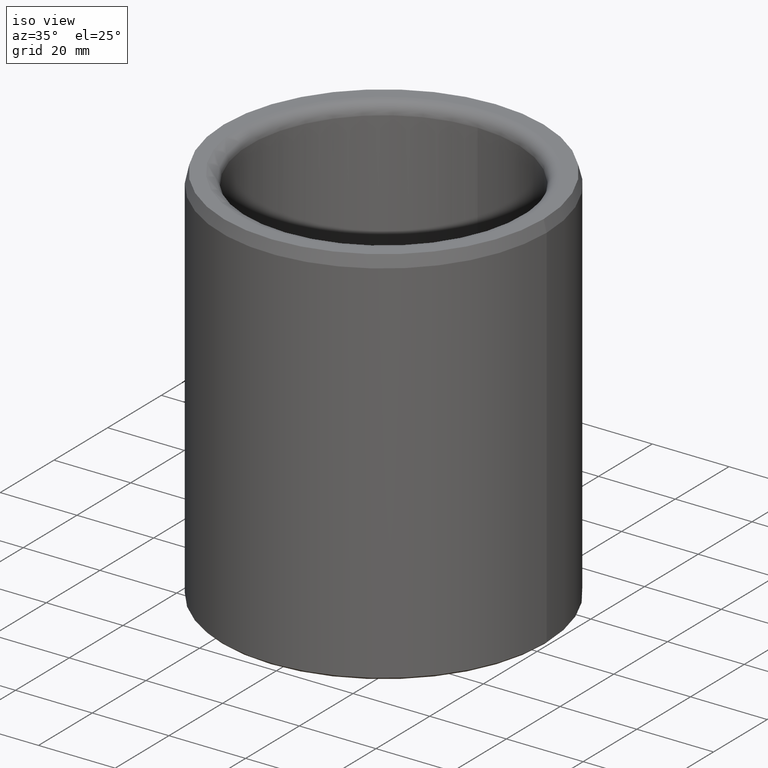
[diagram: clean part render]
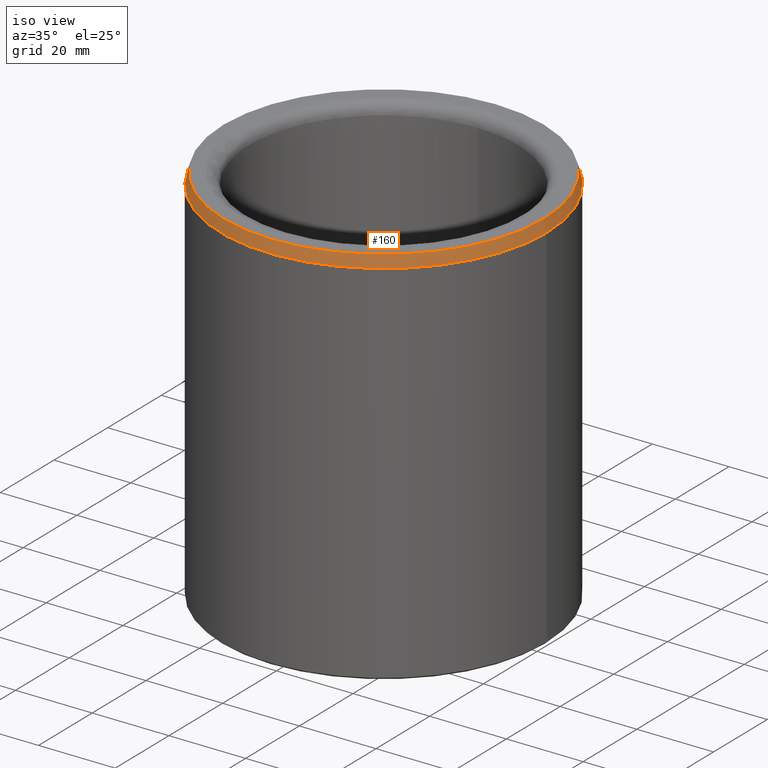
[diagram: same view with one face highlighted and labeled with its STEP entity id]
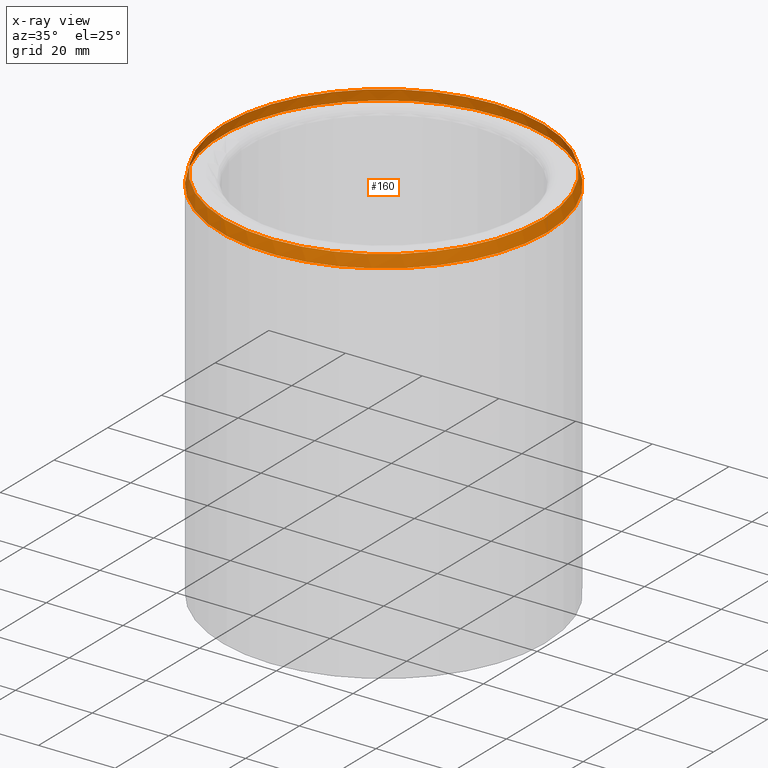
[diagram: x-ray of the same camera — body ghosted, the highlighted face saturated]
A machine part, iso view. The second image highlights one B-rep face of the part: STEP entity #160.
The next image is the same camera in x-ray: the body ghosted, the highlighted face saturated — about 0% of this face is hidden behind the body in this view.
In plain terms, the highlighted conical surface has half-angle 15 deg.
Its self-contained STEP definition (entity closure, byte-faithful):
#160=ADVANCED_FACE('',(#184,#185),#186,.T.);
#184=FACE_BOUND('',#209,.T.);
#185=FACE_OUTER_BOUND('',#210,.T.);
#186=CONICAL_SURFACE('',#211,0.0425,0.261799387799143);
#209=EDGE_LOOP('',(#247));
#210=EDGE_LOOP('',(#248));
#211=AXIS2_PLACEMENT_3D('',#249,#250,#251);
#247=ORIENTED_EDGE('',*,*,#255,.T.);
#248=ORIENTED_EDGE('',*,*,#259,.F.);
#249=CARTESIAN_POINT('',(0.0,5.20417042793042E-018,0.097));
#250=DIRECTION('',(0.0,-6.12323399573677E-017,-1.0));
#251=DIRECTION('',(0.0,1.0,-6.12323399573677E-017));
#255=EDGE_CURVE('',#266,#266,#267,.T.);
#259=EDGE_CURVE('',#274,#274,#275,.T.);
#266=VERTEX_POINT('',#282);
#267=CIRCLE('',#283,0.0416961524227066);
#274=VERTEX_POINT('',#290);
#275=CIRCLE('',#291,0.0425);
#282=CARTESIAN_POINT('',(0.0416961524227066,6.93889390390723E-018,0.1));
#283=AXIS2_PLACEMENT_3D('',#301,#302,#303);
#290=CARTESIAN_POINT('',(0.0425,5.20417042793042E-018,0.097));
#291=AXIS2_PLACEMENT_3D('',#313,#314,#315);
#301=CARTESIAN_POINT('',(0.0,6.93889390390723E-018,0.1));
#302=DIRECTION('',(0.0,-6.12323399573677E-017,-1.0));
#303=DIRECTION('',(0.0,1.0,-6.12323399573677E-017));
#313=CARTESIAN_POINT('',(0.0,5.20417042793042E-018,0.097));
#314=DIRECTION('',(0.0,-6.12323399573677E-017,-1.0));
#315=DIRECTION('',(0.0,1.0,-6.12323399573677E-017));